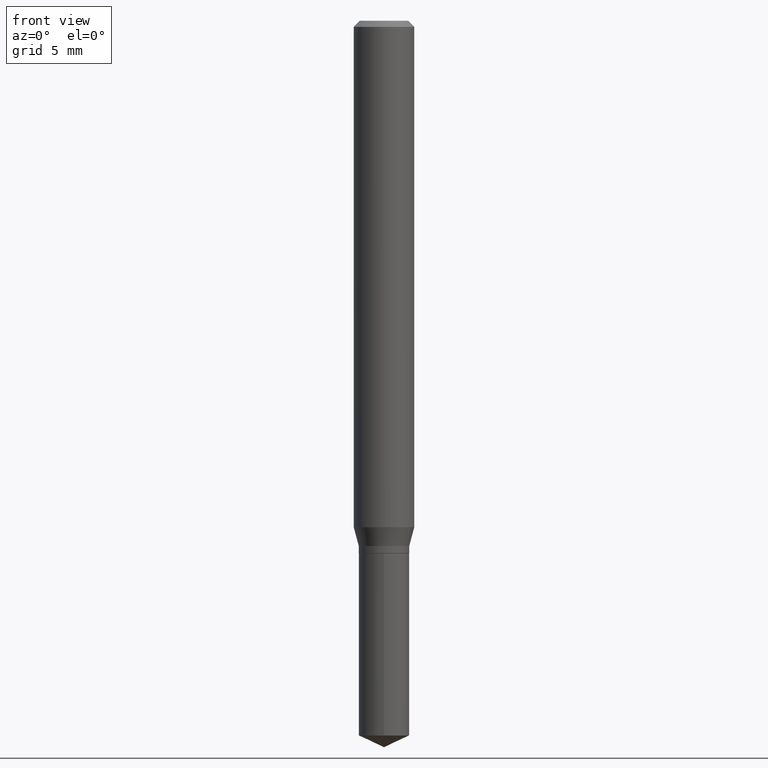
[diagram: clean part render]
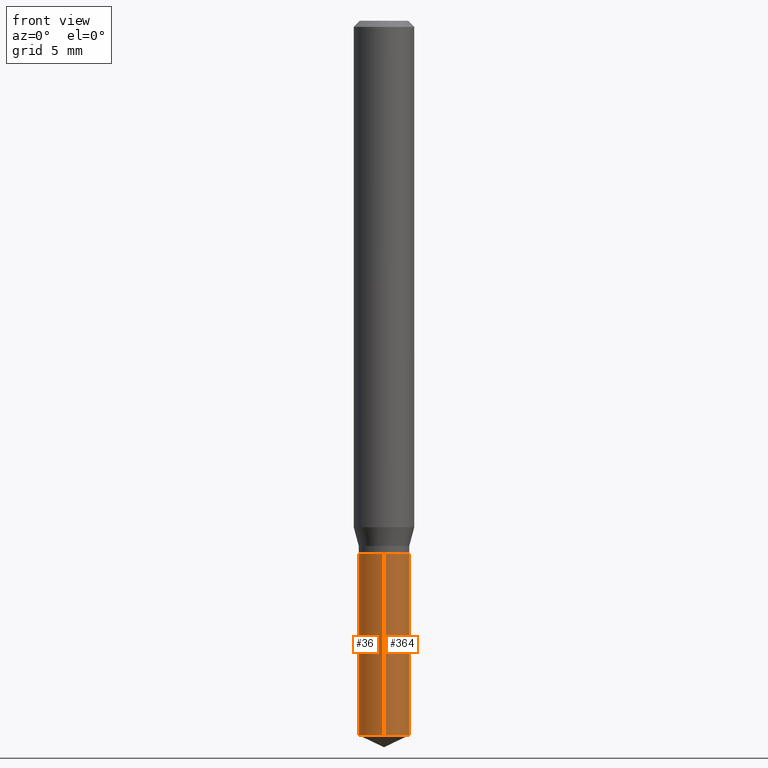
[diagram: same view with one multi-face feature highlighted, each face labeled with its STEP entity id]
A machine part, front view. The highlighted faces form ONE feature: a constant-radius fillet chain: 2 tangent blend faces with common blend radius 1.3246 mm. The faces share edges in the B-rep.
Their STEP definitions:
[1] entity #36 (Cylinder):
#24 = CARTESIAN_POINT ( 'NONE',  ( 3.705480366989282030E-16, 0.05214999999999482549, -1.475682055627217437 ) ) ;
#36 = ADVANCED_FACE ( 'NONE', ( #170 ), #445, .T. ) ;
#65 = CARTESIAN_POINT ( 'NONE',  ( 2.690015686803650369E-29, -3.840629472727460101E-15, -1.100000000000000089 ) ) ;
#67 = AXIS2_PLACEMENT_3D ( 'NONE', #65, #95, #274 ) ;
#73 = EDGE_CURVE ( 'NONE', #327, #247, #207, .T. ) ;
#82 = EDGE_CURVE ( 'NONE', #247, #125, #336, .T. ) ;
#95 = DIRECTION ( 'NONE',  ( -2.445399690415121530E-29, 3.491580316559632610E-15, 1.000000000000000000 ) ) ;
#122 = ORIENTED_EDGE ( 'NONE', *, *, #73, .F. ) ;
#125 = VERTEX_POINT ( 'NONE', #387 ) ;
#134 = CARTESIAN_POINT ( 'NONE',  ( 3.705480366989190325E-16, 0.05214999999999615776, -1.100000000000000089 ) ) ;
#147 = DIRECTION ( 'NONE',  ( -2.445399690415121810E-29, 3.491580316559632610E-15, 1.000000000000000000 ) ) ;
#170 = FACE_OUTER_BOUND ( 'NONE', #386, .T. ) ;
#183 = DIRECTION ( 'NONE',  ( -2.445399690415121530E-29, 3.491580316559632610E-15, 1.000000000000000000 ) ) ;
#189 = CARTESIAN_POINT ( 'NONE',  ( -3.641615036413025703E-16, -0.05215000000000513669, -1.475682055627216993 ) ) ;
#201 = CIRCLE ( 'NONE', #255, 0.05215000000000000191 ) ;
#207 = LINE ( 'NONE', #134, #451 ) ;
#221 = LINE ( 'NONE', #486, #229 ) ;
#229 = VECTOR ( 'NONE', #147, 39.37007874015748143 ) ;
#247 = VERTEX_POINT ( 'NONE', #407 ) ;
#255 = AXIS2_PLACEMENT_3D ( 'NONE', #447, #183, #444 ) ;
#266 = EDGE_CURVE ( 'NONE', #476, #125, #221, .T. ) ;
#274 = DIRECTION ( 'NONE',  ( -6.982962677686266711E-15, -1.000000000000000000, 2.619221470435534958E-15 ) ) ;
#315 = DIRECTION ( 'NONE',  ( -2.445399690415121530E-29, 3.491580316559632610E-15, 1.000000000000000000 ) ) ;
#319 = DIRECTION ( 'NONE',  ( -6.982962677686266711E-15, -1.000000000000000000, 2.619221470435534958E-15 ) ) ;
#327 = VERTEX_POINT ( 'NONE', #24 ) ;
#336 = CIRCLE ( 'NONE', #474, 0.05215000000000000191 ) ;
#345 = DIRECTION ( 'NONE',  ( -2.445399690415121810E-29, 3.491580316559632610E-15, 1.000000000000000000 ) ) ;
#353 = CARTESIAN_POINT ( 'NONE',  ( 2.690015686803650369E-29, -3.840629472727460101E-15, -1.100000000000000089 ) ) ;
#384 = EDGE_CURVE ( 'NONE', #327, #476, #201, .T. ) ;
#386 = EDGE_LOOP ( 'NONE', ( #122, #485, #390, #471 ) ) ;
#387 = CARTESIAN_POINT ( 'NONE',  ( -3.641615036413119380E-16, -0.05215000000000383912, -1.099999999999999867 ) ) ;
#390 = ORIENTED_EDGE ( 'NONE', *, *, #266, .T. ) ;
#407 = CARTESIAN_POINT ( 'NONE',  ( 3.705480366989283509E-16, 0.05214999999999615776, -1.100000000000000089 ) ) ;
#444 = DIRECTION ( 'NONE',  ( -6.982962677686266711E-15, -1.000000000000000000, 5.238442940871069917E-15 ) ) ;
#445 = CYLINDRICAL_SURFACE ( 'NONE', #67, 0.05215000000000000191 ) ;
#447 = CARTESIAN_POINT ( 'NONE',  ( 3.608708469328962837E-29, -5.152353543440113099E-15, -1.475682055627217215 ) ) ;
#451 = VECTOR ( 'NONE', #345, 39.37007874015748143 ) ;
#471 = ORIENTED_EDGE ( 'NONE', *, *, #82, .F. ) ;
#474 = AXIS2_PLACEMENT_3D ( 'NONE', #353, #315, #319 ) ;
#476 = VERTEX_POINT ( 'NONE', #189 ) ;
#485 = ORIENTED_EDGE ( 'NONE', *, *, #384, .T. ) ;
#486 = CARTESIAN_POINT ( 'NONE',  ( -3.641615036413119380E-16, -0.05215000000000383912, -1.099999999999999867 ) ) ;
[2] entity #364 (Cylinder):
#24 = CARTESIAN_POINT ( 'NONE',  ( 3.705480366989282030E-16, 0.05214999999999482549, -1.475682055627217437 ) ) ;
#44 = CARTESIAN_POINT ( 'NONE',  ( 2.690015686803650369E-29, -3.840629472727460101E-15, -1.100000000000000089 ) ) ;
#47 = EDGE_LOOP ( 'NONE', ( #285, #78, #278, #174 ) ) ;
#61 = DIRECTION ( 'NONE',  ( -6.982962677686266711E-15, -1.000000000000000000, 2.619221470435534958E-15 ) ) ;
#66 = CARTESIAN_POINT ( 'NONE',  ( 3.608708469328962837E-29, -5.152353543440113099E-15, -1.475682055627217215 ) ) ;
#73 = EDGE_CURVE ( 'NONE', #327, #247, #207, .T. ) ;
#78 = ORIENTED_EDGE ( 'NONE', *, *, #73, .T. ) ;
#118 = EDGE_CURVE ( 'NONE', #125, #247, #120, .T. ) ;
#120 = CIRCLE ( 'NONE', #462, 0.05215000000000000191 ) ;
#125 = VERTEX_POINT ( 'NONE', #387 ) ;
#134 = CARTESIAN_POINT ( 'NONE',  ( 3.705480366989190325E-16, 0.05214999999999615776, -1.100000000000000089 ) ) ;
#147 = DIRECTION ( 'NONE',  ( -2.445399690415121810E-29, 3.491580316559632610E-15, 1.000000000000000000 ) ) ;
#174 = ORIENTED_EDGE ( 'NONE', *, *, #266, .F. ) ;
#189 = CARTESIAN_POINT ( 'NONE',  ( -3.641615036413025703E-16, -0.05215000000000513669, -1.475682055627216993 ) ) ;
#200 = DIRECTION ( 'NONE',  ( -6.982962677686266711E-15, -1.000000000000000000, 2.619221470435534958E-15 ) ) ;
#207 = LINE ( 'NONE', #134, #451 ) ;
#221 = LINE ( 'NONE', #486, #229 ) ;
#229 = VECTOR ( 'NONE', #147, 39.37007874015748143 ) ;
#236 = DIRECTION ( 'NONE',  ( -2.445399690415121530E-29, 3.491580316559632610E-15, 1.000000000000000000 ) ) ;
#247 = VERTEX_POINT ( 'NONE', #407 ) ;
#254 = DIRECTION ( 'NONE',  ( -2.445399690415121530E-29, 3.491580316559632610E-15, 1.000000000000000000 ) ) ;
#266 = EDGE_CURVE ( 'NONE', #476, #125, #221, .T. ) ;
#273 = AXIS2_PLACEMENT_3D ( 'NONE', #405, #374, #61 ) ;
#278 = ORIENTED_EDGE ( 'NONE', *, *, #118, .F. ) ;
#285 = ORIENTED_EDGE ( 'NONE', *, *, #333, .T. ) ;
#312 = AXIS2_PLACEMENT_3D ( 'NONE', #66, #254, #325 ) ;
#325 = DIRECTION ( 'NONE',  ( -6.982962677686266711E-15, -1.000000000000000000, 5.238442940871069917E-15 ) ) ;
#327 = VERTEX_POINT ( 'NONE', #24 ) ;
#333 = EDGE_CURVE ( 'NONE', #476, #327, #489, .T. ) ;
#345 = DIRECTION ( 'NONE',  ( -2.445399690415121810E-29, 3.491580316559632610E-15, 1.000000000000000000 ) ) ;
#364 = ADVANCED_FACE ( 'NONE', ( #487 ), #440, .T. ) ;
#374 = DIRECTION ( 'NONE',  ( -2.445399690415121530E-29, 3.491580316559632610E-15, 1.000000000000000000 ) ) ;
#387 = CARTESIAN_POINT ( 'NONE',  ( -3.641615036413119380E-16, -0.05215000000000383912, -1.099999999999999867 ) ) ;
#405 = CARTESIAN_POINT ( 'NONE',  ( 2.690015686803650369E-29, -3.840629472727460101E-15, -1.100000000000000089 ) ) ;
#407 = CARTESIAN_POINT ( 'NONE',  ( 3.705480366989283509E-16, 0.05214999999999615776, -1.100000000000000089 ) ) ;
#440 = CYLINDRICAL_SURFACE ( 'NONE', #273, 0.05215000000000000191 ) ;
#451 = VECTOR ( 'NONE', #345, 39.37007874015748143 ) ;
#462 = AXIS2_PLACEMENT_3D ( 'NONE', #44, #236, #200 ) ;
#476 = VERTEX_POINT ( 'NONE', #189 ) ;
#486 = CARTESIAN_POINT ( 'NONE',  ( -3.641615036413119380E-16, -0.05215000000000383912, -1.099999999999999867 ) ) ;
#487 = FACE_OUTER_BOUND ( 'NONE', #47, .T. ) ;
#489 = CIRCLE ( 'NONE', #312, 0.05215000000000000191 ) ;